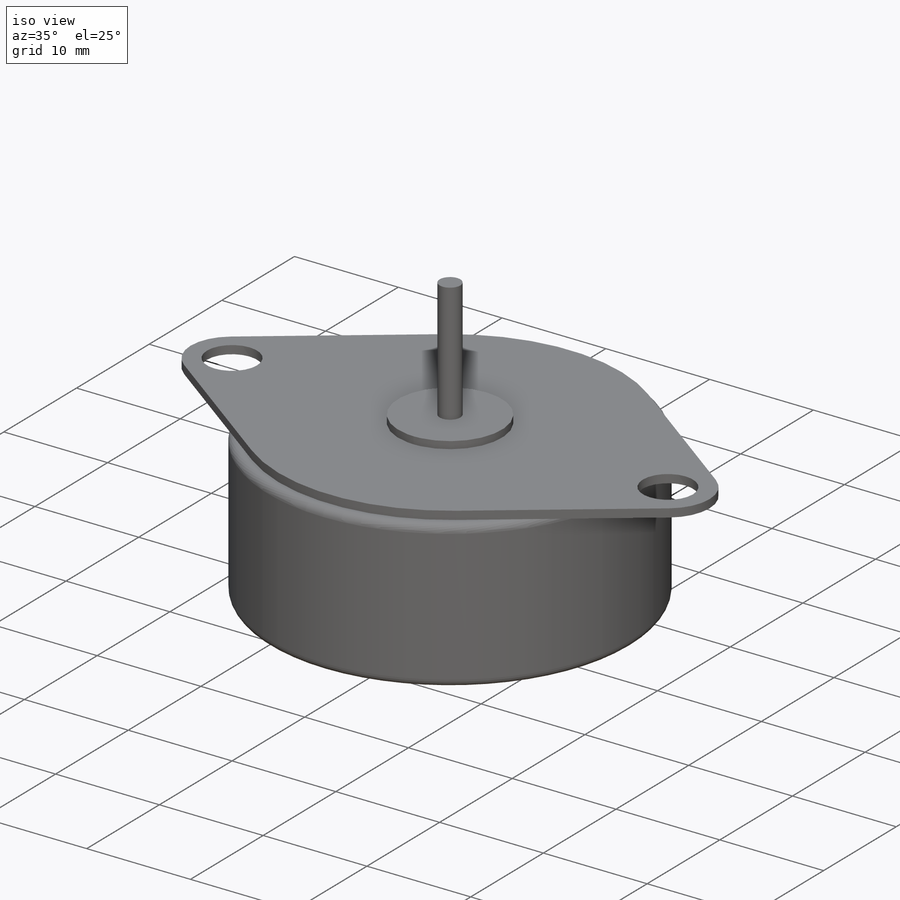
[diagram: iso view]
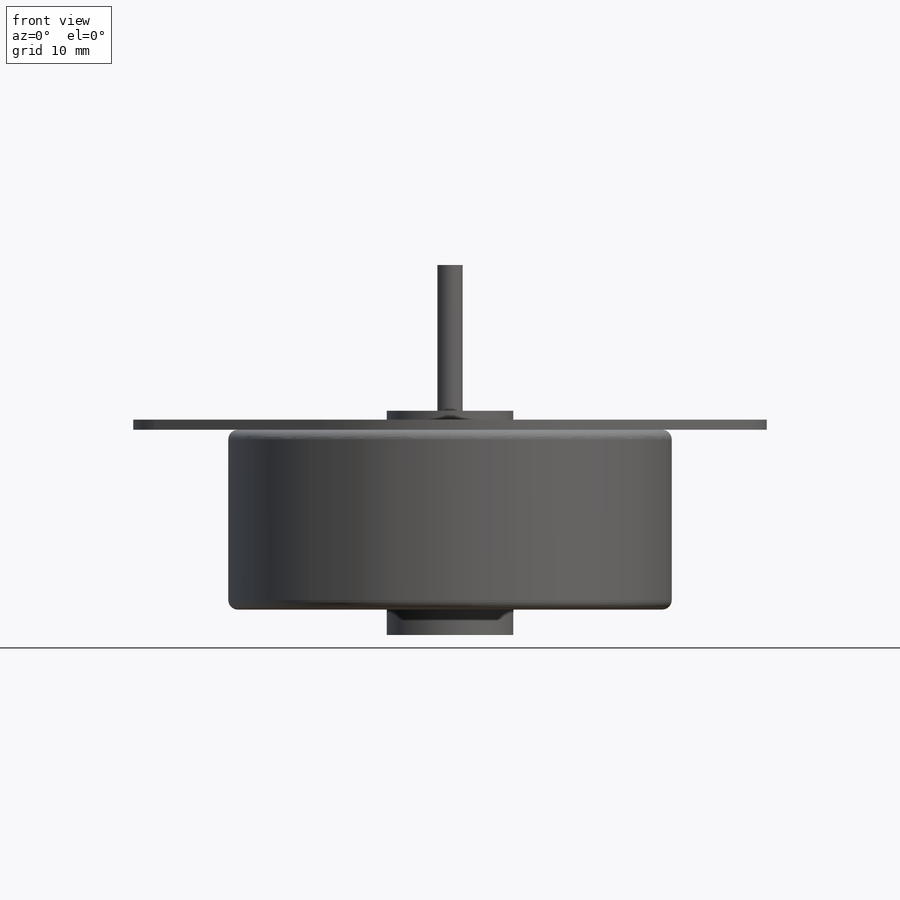
[diagram: front view]
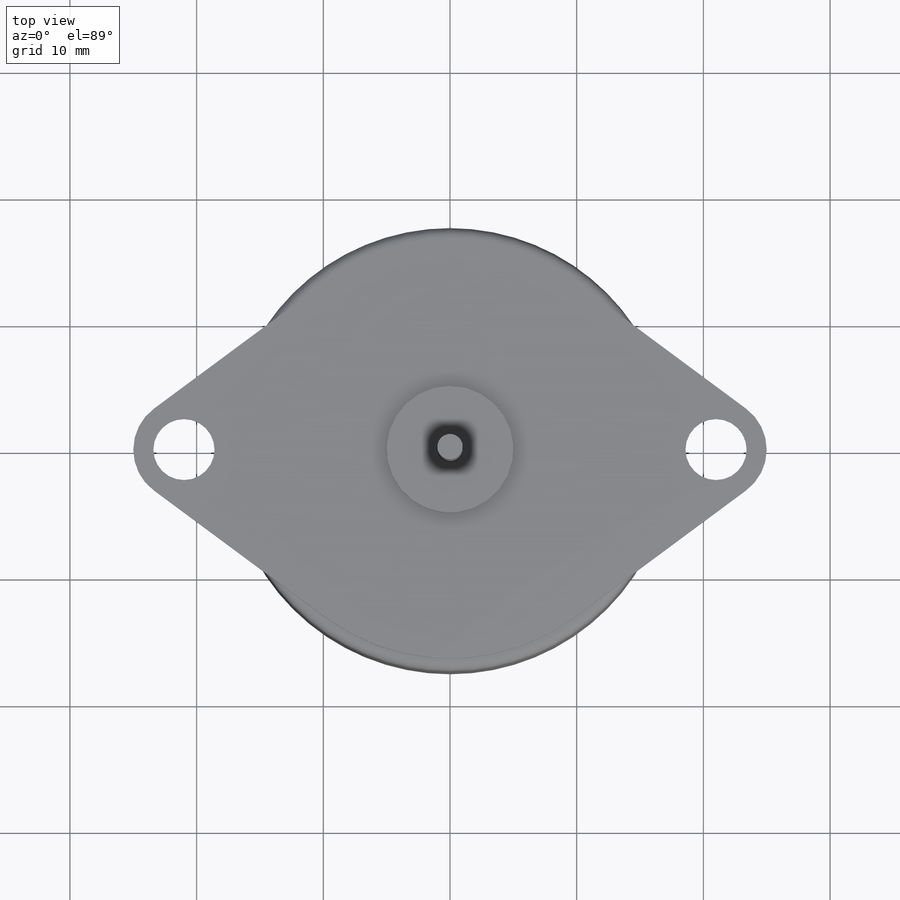
[diagram: top view]
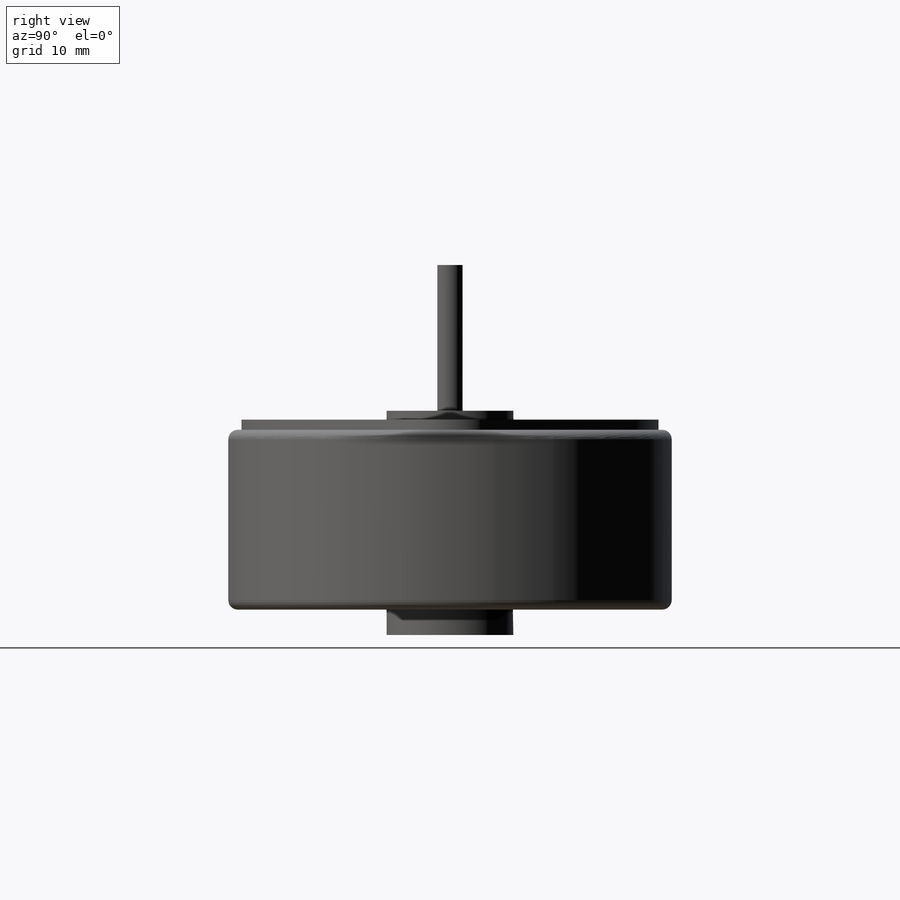
[diagram: right view]
SOLIDWORKS PART (.sldprt)
format: sldprt  version: not decoded by parser v0  size: 222,208 bytes
history: native  units: mm
features: sketch x5, extrude x5, material x1, fillet x1 (+16 scaffold rows collapsed)
feature tree (28):
  scaffold x16  (default folders/planes/origin — collapsed)
  material  "Material <not specified>"
  sketch  "Sketch1"  dims[D1=35.0mm]
  extrude  "Extrude1"  Depth=14.2mm
  fillet  "Fillet1"  Radius=0.75mm
  sketch  "Sketch2"  dims[c1.D1=~3.382005mm c1.D2=~3.382005mm c1.D3=4.826mm c1.D4=16.5mm c2.D1=42.0mm c2.D2=42.0mm c2.D3=42.0mm c3.D1=50.0mm c3.D2=42.0mm]
  extrude  "Extrude2"  Depth=0.8mm
  sketch  "Sketch3"  dims[D1=10.0mm]
  extrude  "Extrude3"  Depth=2mm
  sketch  "Sketch4"  dims[D1=10.0mm]
  extrude  "Extrude4"  Depth=0.7mm
  sketch  "Sketch5"  dims[D1=2.0mm]
  extrude  "Extrude5"  Depth=11.5mm
decode coverage: 11 of 11 modeling features carry decoded parameters
note: ~ marks probable driven/reference dimensions
note: suppression state not decoded; provenance and decode notes live in map.json
